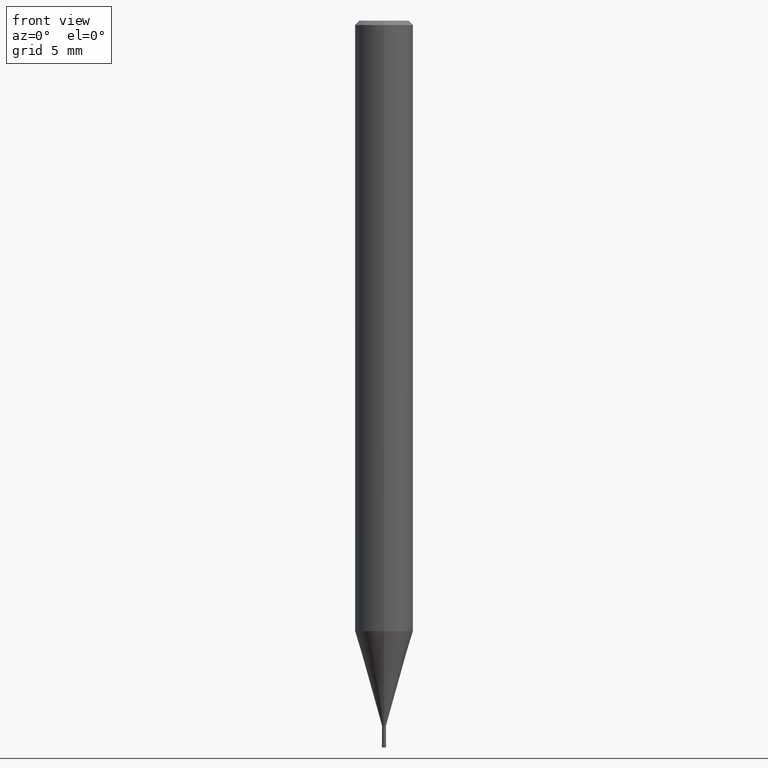
[diagram: clean part render]
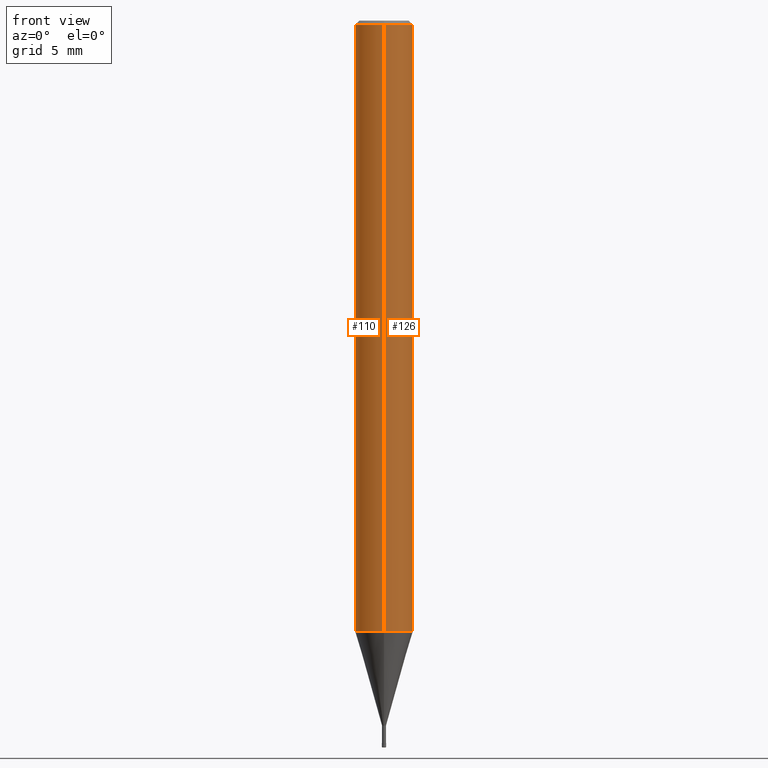
[diagram: same view with one multi-face feature highlighted, each face labeled with its STEP entity id]
A machine part, front view. The highlighted faces form ONE feature: a constant-radius fillet chain: 2 tangent blend faces with common blend radius 2 mm. The faces share edges in the B-rep.
Their STEP definitions:
[1] entity #126 (Cylinder):
#102=EDGE_CURVE('',#220,#138,#255,.T.);
#116=EDGE_CURVE('',#210,#190,#272,.T.);
#126=ADVANCED_FACE('',(#284),#285,.T.);
#138=VERTEX_POINT('',#298);
#190=VERTEX_POINT('',#356);
#192=EDGE_CURVE('',#138,#190,#358,.T.);
#210=VERTEX_POINT('',#379);
#220=VERTEX_POINT('',#391);
#222=EDGE_CURVE('',#210,#220,#393,.T.);
#255=CIRCLE('',#419,2.0);
#272=CIRCLE('',#440,2.0);
#284=FACE_OUTER_BOUND('',#455,.T.);
#285=CYLINDRICAL_SURFACE('',#456,2.0);
#298=CARTESIAN_POINT('',(2.44921270764475E-016,-2.0,-41.996));
#356=CARTESIAN_POINT('',(2.44921270764475E-016,-2.0,-0.299999999999997));
#358=LINE('',#546,#547);
#379=CARTESIAN_POINT('',(0.0,2.0,-0.299999999999997));
#391=CARTESIAN_POINT('',(0.0,2.0,-41.996));
#393=LINE('',#588,#589);
#419=AXIS2_PLACEMENT_3D('',#606,#607,#608);
#440=AXIS2_PLACEMENT_3D('',#634,#635,#636);
#455=EDGE_LOOP('',(#656,#657,#658,#659));
#456=AXIS2_PLACEMENT_3D('',#660,#661,#662);
#546=CARTESIAN_POINT('',(2.44921270764475E-016,-2.0,-21.148));
#547=VECTOR('',#742,1.0);
#588=CARTESIAN_POINT('',(-2.44921270764475E-016,2.0,-21.148));
#589=VECTOR('',#795,1.0);
#606=CARTESIAN_POINT('',(0.0,0.0,-41.996));
#607=DIRECTION('',(0.0,0.0,-1.0));
#608=DIRECTION('',(0.0,1.0,0.0));
#634=CARTESIAN_POINT('',(0.0,0.0,-0.299999999999997));
#635=DIRECTION('',(0.0,0.0,-1.0));
#636=DIRECTION('',(0.0,1.0,0.0));
#656=ORIENTED_EDGE('',*,*,#222,.F.);
#657=ORIENTED_EDGE('',*,*,#116,.T.);
#658=ORIENTED_EDGE('',*,*,#192,.F.);
#659=ORIENTED_EDGE('',*,*,#102,.F.);
#660=CARTESIAN_POINT('',(0.0,0.0,-21.148));
#661=DIRECTION('',(-0.0,-0.0,1.0));
#662=DIRECTION('',(0.0,1.0,0.0));
#742=DIRECTION('',(-0.0,-0.0,1.0));
#795=DIRECTION('',(0.0,0.0,-1.0));
[2] entity #110 (Cylinder):
#108=EDGE_CURVE('',#190,#210,#261,.T.);
#110=ADVANCED_FACE('',(#263),#264,.T.);
#138=VERTEX_POINT('',#298);
#190=VERTEX_POINT('',#356);
#192=EDGE_CURVE('',#138,#190,#358,.T.);
#210=VERTEX_POINT('',#379);
#220=VERTEX_POINT('',#391);
#222=EDGE_CURVE('',#210,#220,#393,.T.);
#226=EDGE_CURVE('',#138,#220,#397,.T.);
#261=CIRCLE('',#427,2.0);
#263=FACE_OUTER_BOUND('',#429,.T.);
#264=CYLINDRICAL_SURFACE('',#430,2.0);
#298=CARTESIAN_POINT('',(2.44921270764475E-016,-2.0,-41.996));
#356=CARTESIAN_POINT('',(2.44921270764475E-016,-2.0,-0.299999999999997));
#358=LINE('',#546,#547);
#379=CARTESIAN_POINT('',(0.0,2.0,-0.299999999999997));
#391=CARTESIAN_POINT('',(0.0,2.0,-41.996));
#393=LINE('',#588,#589);
#397=CIRCLE('',#596,2.0);
#427=AXIS2_PLACEMENT_3D('',#612,#613,#614);
#429=EDGE_LOOP('',(#616,#617,#618,#619));
#430=AXIS2_PLACEMENT_3D('',#620,#621,#622);
#546=CARTESIAN_POINT('',(2.44921270764475E-016,-2.0,-21.148));
#547=VECTOR('',#742,1.0);
#588=CARTESIAN_POINT('',(-2.44921270764475E-016,2.0,-21.148));
#589=VECTOR('',#795,1.0);
#596=AXIS2_PLACEMENT_3D('',#797,#798,#799);
#612=CARTESIAN_POINT('',(0.0,0.0,-0.299999999999997));
#613=DIRECTION('',(0.0,0.0,-1.0));
#614=DIRECTION('',(0.0,1.0,0.0));
#616=ORIENTED_EDGE('',*,*,#222,.T.);
#617=ORIENTED_EDGE('',*,*,#226,.F.);
#618=ORIENTED_EDGE('',*,*,#192,.T.);
#619=ORIENTED_EDGE('',*,*,#108,.T.);
#620=CARTESIAN_POINT('',(0.0,0.0,-21.148));
#621=DIRECTION('',(-0.0,-0.0,1.0));
#622=DIRECTION('',(0.0,1.0,0.0));
#742=DIRECTION('',(-0.0,-0.0,1.0));
#795=DIRECTION('',(0.0,0.0,-1.0));
#797=CARTESIAN_POINT('',(0.0,0.0,-41.996));
#798=DIRECTION('',(0.0,0.0,-1.0));
#799=DIRECTION('',(0.0,1.0,0.0));